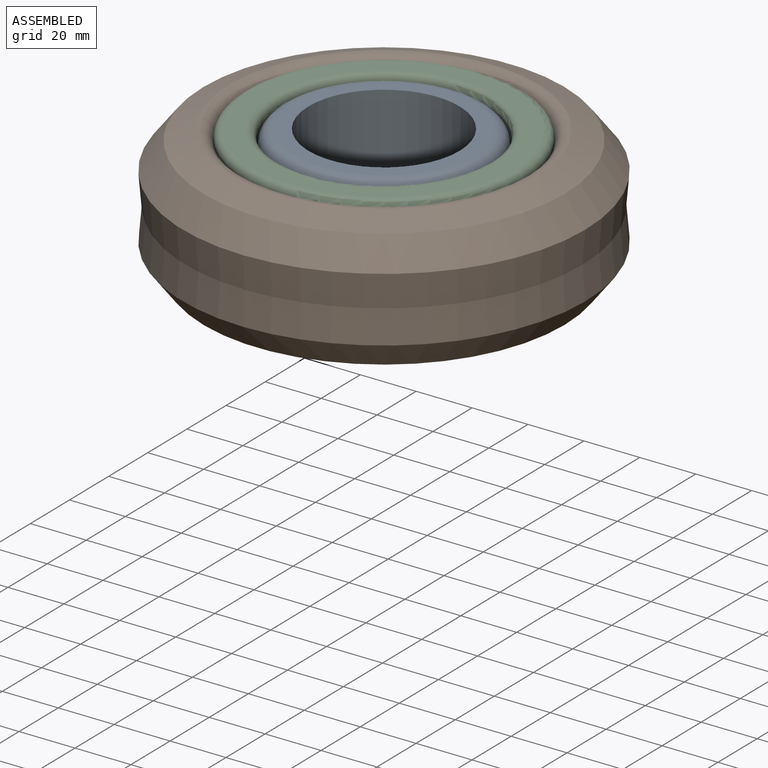
[diagram: assembled view]
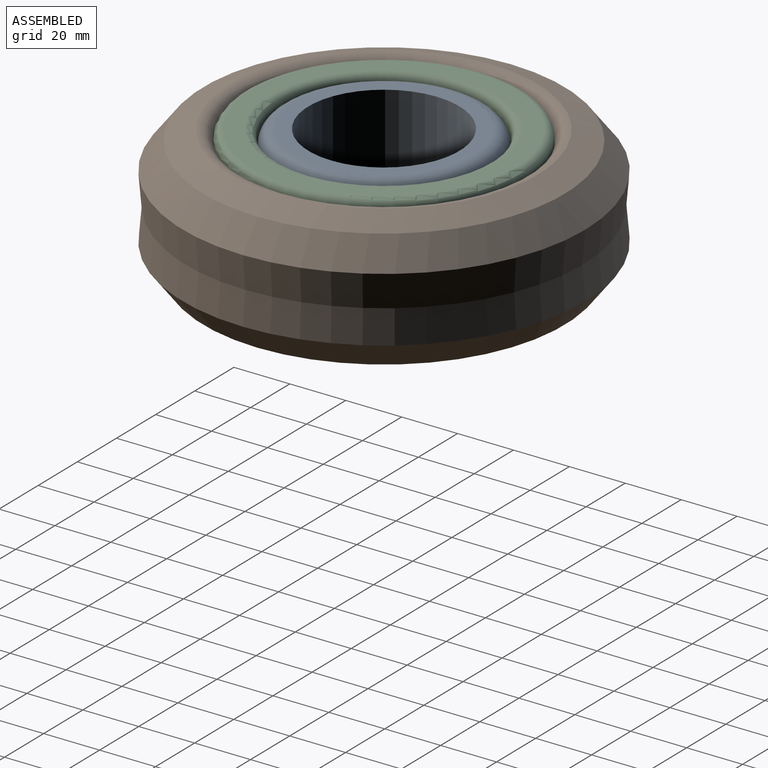
[diagram: assembled view, second angle]
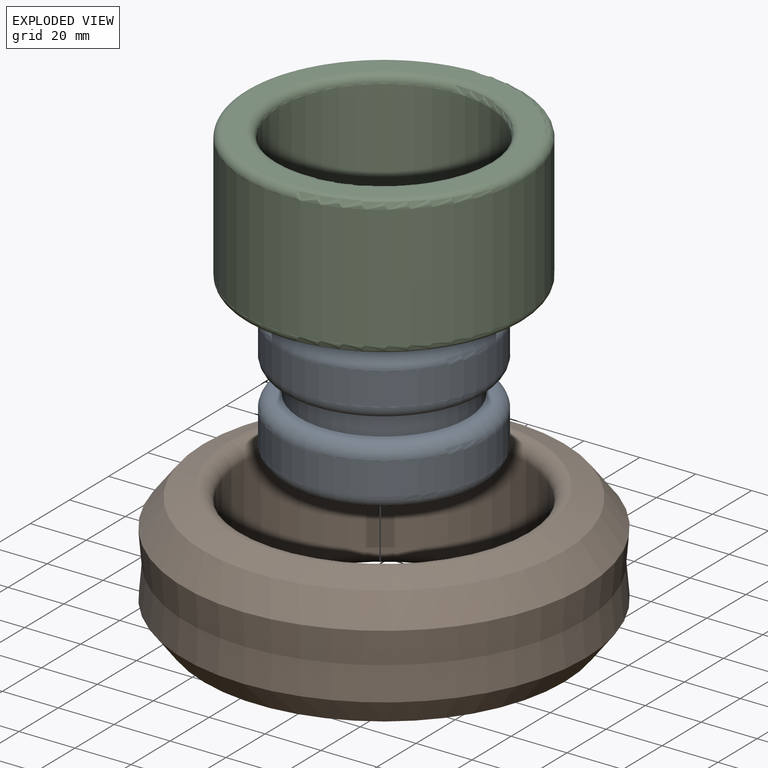
[diagram: exploded view]
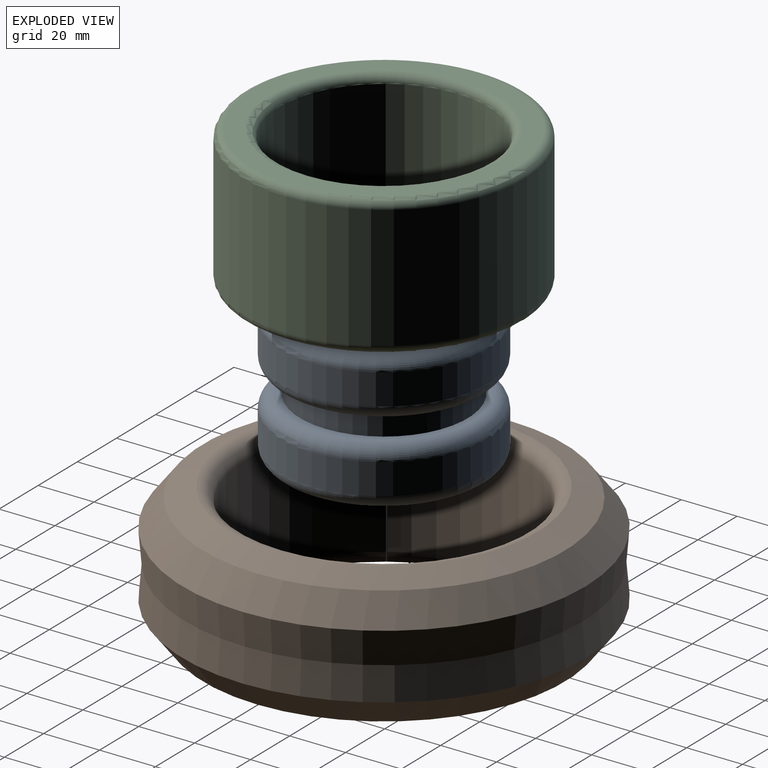
[diagram: exploded view, second angle]
ASSEMBLY  parts=3 mates=2
PART A: 12 faces, bbox 80.1x80.1x50 mm
  f0: cylinder r=30mm len=60mm, axis (0,0,-1), area 1508mm2, adj f1,f7
  f1: plane 64x64mm, normal (0,0,-1), area 389.6mm2, adj f0,f8
  f2: cylinder r=37mm len=74mm, axis (0,0,-1), area 2557.3mm2, adj f8,f9
  f3: plane 64x64mm, normal (0,0,1), area 926.8mm2, adj f4,f9
  f4: cylinder r=27mm len=54mm, axis (0,0,-1), area 8482.3mm2, adj f3,f5
  f5: plane 64x64mm, normal (0,0,-1), area 926.8mm2, adj f4,f10
  f6: cylinder r=37mm len=74mm, axis (0,0,-1), area 2557.3mm2, adj f10,f11
  f7: plane 64x64mm, normal (0,0,1), area 389.6mm2, adj f0,f11
  f8: torus R=32mm, axis (0,0,1), area 1736.2mm2, adj f1,f2
  f9: torus R=32mm, axis (0,0,1), area 1736.2mm2, adj f2,f3
  f10: torus R=32mm, axis (0,0,-1), area 1736.2mm2, adj f5,f6
  f11: torus R=32mm, axis (0,0,1), area 1736.2mm2, adj f6,f7
PART B: 9 faces, bbox 144.1x144.1x49.5 mm
  f0: cylinder r=50mm len=100mm, axis (0,0,-1), area 12409.3mm2, adj f7,f8
  f1: cone r=55mm half-angle=69.6deg, axis (0,0,-1), area 3863.8mm2, adj f2,f7
  f2: cone r=64.64mm half-angle=37.6deg, axis (0,0,-1), area 5200.2mm2, adj f1,f3
  f3: cone r=72.03mm half-angle=5deg, axis (0,0,1), area 5221.3mm2, adj f2,f4
  f4: cone r=72.03mm half-angle=5deg, axis (0,0,-1), area 5221.3mm2, adj f3,f5
  f5: cone r=64.64mm half-angle=37.6deg, axis (0,0,1), area 5200.2mm2, adj f4,f6
  f6: cone r=55mm half-angle=69.6deg, axis (0,0,1), area 3863.8mm2, adj f5,f8
  f7: torus R=55mm, axis (0,0,-1), area 2557.1mm2, adj f0,f1
  f8: torus R=55mm, axis (0,0,-1), area 2557.1mm2, adj f0,f6
PART C: 8 faces, bbox 108.2x108.2x50 mm
  f0: cylinder r=50mm len=100mm, axis (0,0,-1), area 13823mm2, adj f6,f7
  f1: plane 94x94mm, normal (0,0,1), area 1786.8mm2, adj f5,f7
  f2: plane 94x94mm, normal (0,0,-1), area 1786.8mm2, adj f4,f6
  f3: cylinder r=37.5mm len=75mm, axis (0,0,1), area 10367.3mm2, adj f4,f5
  f4: torus R=40.5mm, axis (0,0,1), area 1142.6mm2, adj f2,f3
  f5: torus R=40.5mm, axis (0,0,1), area 1142.6mm2, adj f1,f3
  f6: torus R=47mm, axis (0,0,1), area 1448.2mm2, adj f0,f2
  f7: torus R=47mm, axis (0,0,1), area 1448.2mm2, adj f0,f1
PLACE A t=(194.84,88.13,104.59)mm
PLACE B t=(144.84,88.13,38.17)mm
PLACE C t=(15.47,-3.22,13.17)mm
MATE fastened A.f0 <-> C.f0  axis (0,0,-1) through (194.84,88.13,29.17)mm
MATE fastened B.f0 <-> C.f0  axis (0,0,-1) through (194.84,88.13,38.17)mm
